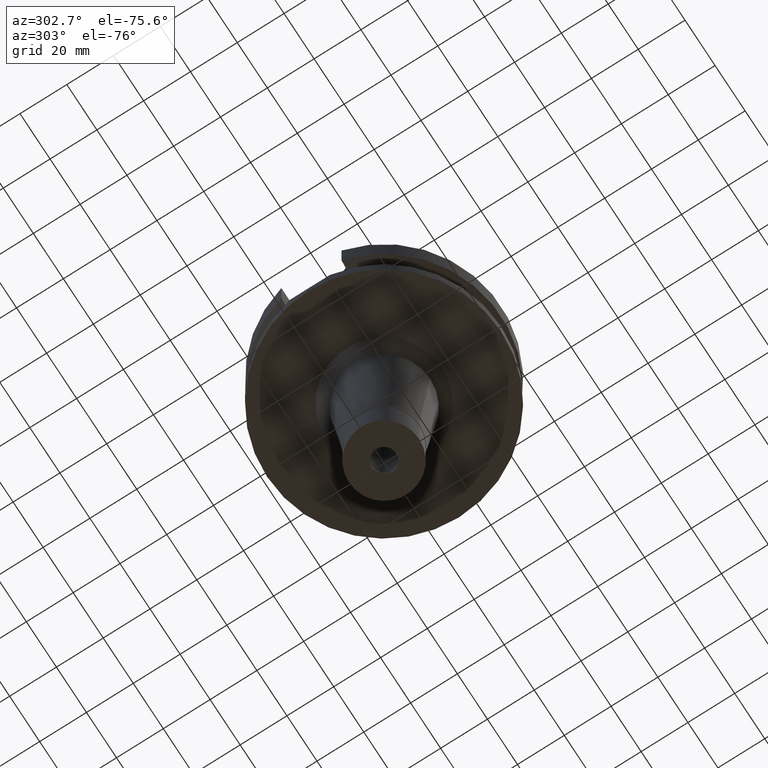
[diagram: clean part render]
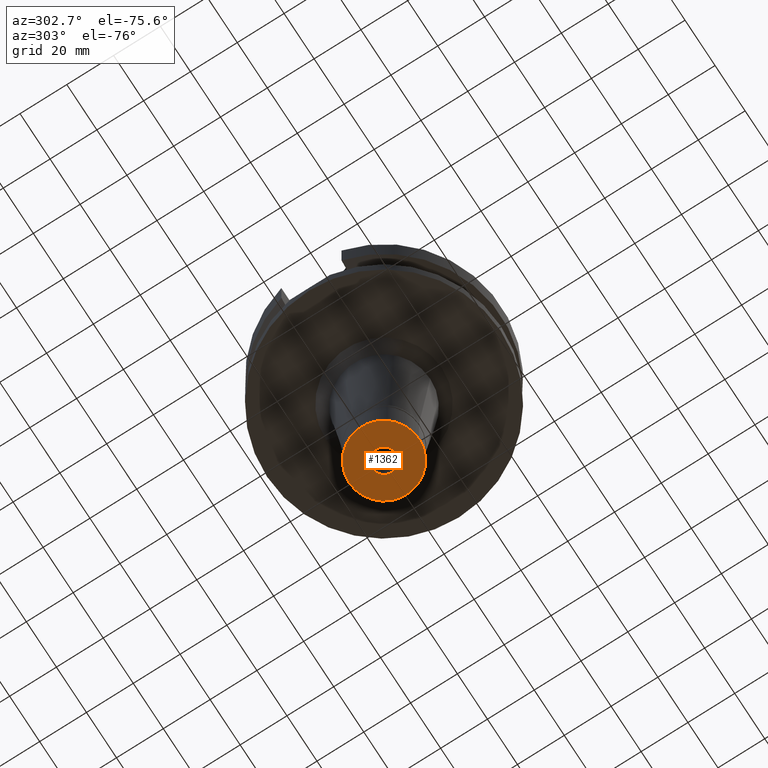
[diagram: same view with one face highlighted and labeled with its STEP entity id]
A machine part, auxiliary view. The second image highlights one B-rep face of the part: STEP entity #1362.
In plain terms, the highlighted planar face has unit normal (0, 0, -1).
Its self-contained STEP definition (entity closure, byte-faithful):
#23 = ORIENTED_EDGE ( 'NONE', *, *, #1003, .F. ) ;
#39 = DIRECTION ( 'NONE',  ( 0.0000000000000000000, 0.0000000000000000000, 1.000000000000000000 ) ) ;
#66 = AXIS2_PLACEMENT_3D ( 'NONE', #1717, #2707, #2459 ) ;
#187 = CARTESIAN_POINT ( 'NONE',  ( 0.0000000000000000000, -15.00000000000000000, -22.00000000000000000 ) ) ;
#205 = AXIS2_PLACEMENT_3D ( 'NONE', #717, #555, #807 ) ;
#269 = AXIS2_PLACEMENT_3D ( 'NONE', #1460, #39, #1216 ) ;
#483 = ORIENTED_EDGE ( 'NONE', *, *, #2803, .F. ) ;
#555 = DIRECTION ( 'NONE',  ( 0.0000000000000000000, 0.0000000000000000000, -1.000000000000000000 ) ) ;
#717 = CARTESIAN_POINT ( 'NONE',  ( 0.0000000000000000000, 0.0000000000000000000, -22.00000000000000000 ) ) ;
#807 = DIRECTION ( 'NONE',  ( 0.0000000000000000000, -1.000000000000000000, 0.0000000000000000000 ) ) ;
#837 = ORIENTED_EDGE ( 'NONE', *, *, #1850, .F. ) ;
#983 = CIRCLE ( 'NONE', #269, 15.00000000000000000 ) ;
#1003 = EDGE_CURVE ( 'NONE', #2888, #1235, #1999, .T. ) ;
#1032 = EDGE_LOOP ( 'NONE', ( #837, #23 ) ) ;
#1108 = EDGE_CURVE ( 'NONE', #2949, #2564, #1437, .T. ) ;
#1189 = CARTESIAN_POINT ( 'NONE',  ( 0.0000000000000000000, 5.100000000001000622, -22.00000000000000000 ) ) ;
#1216 = DIRECTION ( 'NONE',  ( 0.0000000000000000000, 1.000000000000000000, 0.0000000000000000000 ) ) ;
#1217 = FACE_BOUND ( 'NONE', #1032, .T. ) ;
#1235 = VERTEX_POINT ( 'NONE', #1189 ) ;
#1339 = AXIS2_PLACEMENT_3D ( 'NONE', #2281, #2311, #2777 ) ;
#1362 = ADVANCED_FACE ( 'NONE', ( #2951, #1217 ), #2195, .T. ) ;
#1396 = AXIS2_PLACEMENT_3D ( 'NONE', #2770, #2030, #1533 ) ;
#1437 = CIRCLE ( 'NONE', #1339, 15.00000000000000000 ) ;
#1460 = CARTESIAN_POINT ( 'NONE',  ( 0.0000000000000000000, 0.0000000000000000000, -22.00000000000000000 ) ) ;
#1533 = DIRECTION ( 'NONE',  ( 0.0000000000000000000, 1.000000000000000000, 0.0000000000000000000 ) ) ;
#1637 = CARTESIAN_POINT ( 'NONE',  ( 0.0000000000000000000, 15.00000000000000000, -22.00000000000000000 ) ) ;
#1717 = CARTESIAN_POINT ( 'NONE',  ( 0.0000000000000000000, 0.0000000000000000000, -22.00000000000000000 ) ) ;
#1850 = EDGE_CURVE ( 'NONE', #1235, #2888, #2845, .T. ) ;
#1999 = CIRCLE ( 'NONE', #205, 5.100000000001000622 ) ;
#2030 = DIRECTION ( 'NONE',  ( 0.0000000000000000000, 0.0000000000000000000, -1.000000000000000000 ) ) ;
#2195 = PLANE ( 'NONE',  #66 ) ;
#2281 = CARTESIAN_POINT ( 'NONE',  ( 0.0000000000000000000, 0.0000000000000000000, -22.00000000000000000 ) ) ;
#2307 = EDGE_LOOP ( 'NONE', ( #483, #2760 ) ) ;
#2311 = DIRECTION ( 'NONE',  ( 0.0000000000000000000, 0.0000000000000000000, 1.000000000000000000 ) ) ;
#2358 = CARTESIAN_POINT ( 'NONE',  ( 0.0000000000000000000, -5.100000000001000622, -22.00000000000000000 ) ) ;
#2459 = DIRECTION ( 'NONE',  ( 0.0000000000000000000, -1.000000000000000000, 0.0000000000000000000 ) ) ;
#2564 = VERTEX_POINT ( 'NONE', #1637 ) ;
#2707 = DIRECTION ( 'NONE',  ( 0.0000000000000000000, 0.0000000000000000000, -1.000000000000000000 ) ) ;
#2760 = ORIENTED_EDGE ( 'NONE', *, *, #1108, .F. ) ;
#2770 = CARTESIAN_POINT ( 'NONE',  ( 0.0000000000000000000, 0.0000000000000000000, -22.00000000000000000 ) ) ;
#2777 = DIRECTION ( 'NONE',  ( 0.0000000000000000000, -1.000000000000000000, 0.0000000000000000000 ) ) ;
#2803 = EDGE_CURVE ( 'NONE', #2564, #2949, #983, .T. ) ;
#2845 = CIRCLE ( 'NONE', #1396, 5.100000000001000622 ) ;
#2888 = VERTEX_POINT ( 'NONE', #2358 ) ;
#2949 = VERTEX_POINT ( 'NONE', #187 ) ;
#2951 = FACE_OUTER_BOUND ( 'NONE', #2307, .T. ) ;